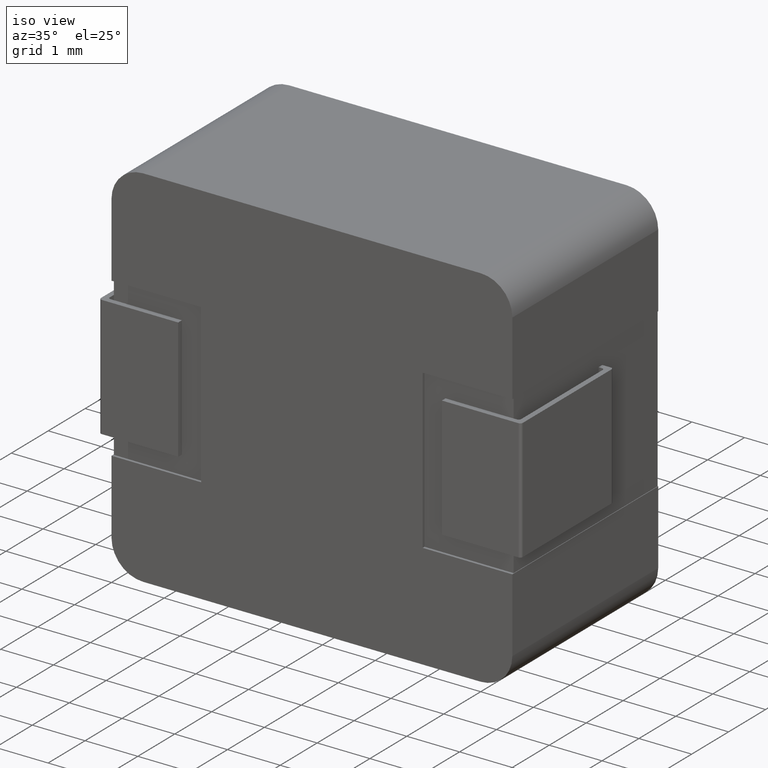
[diagram: clean part render]
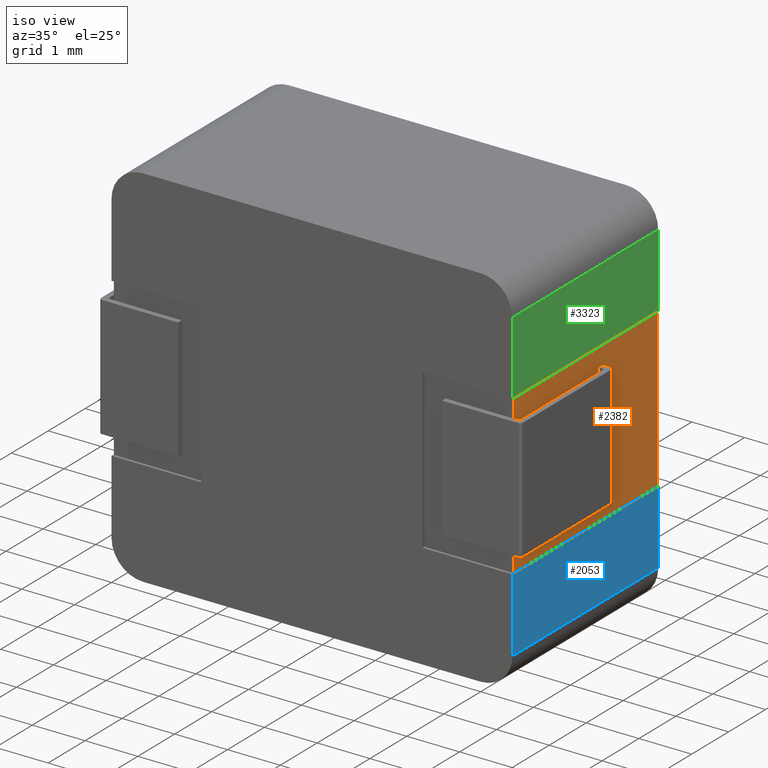
[diagram: same view with three faces highlighted in distinct colors, each labeled with its STEP entity id]
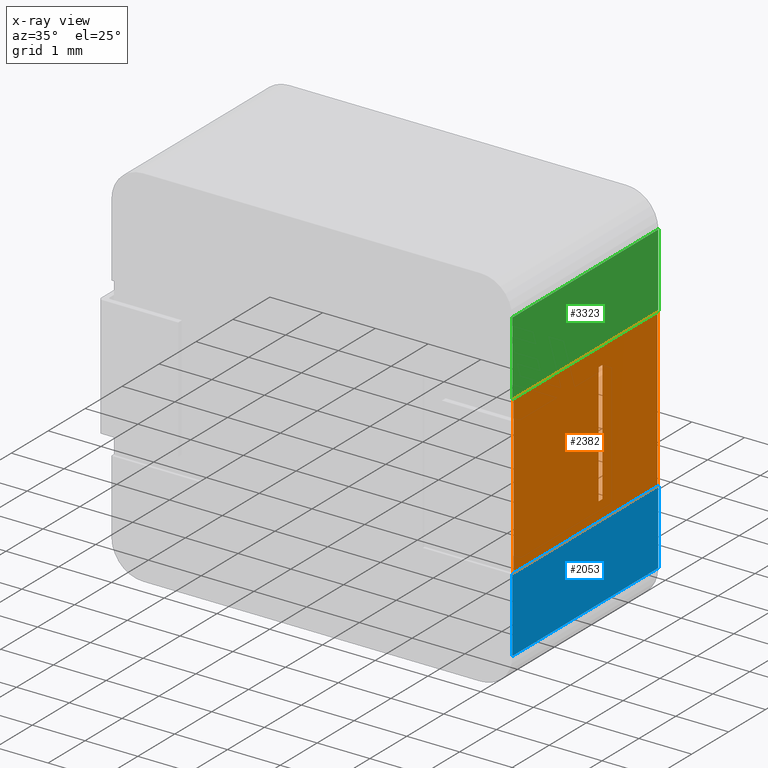
[diagram: x-ray of the same camera — body ghosted, the three highlighted faces saturated]
A machine part, iso view with three faces highlighted in distinct colors.
The next image is the same camera in x-ray (body ghosted, the three faces saturated) — at least one of them is partly hidden behind the body in this view.
Their STEP definitions:

[orange] entity #2382 — the highlighted planar face has unit normal (-1, 0, 0).
#55 = EDGE_LOOP ( 'NONE', ( #74, #1088, #1829, #2896 ) ) ;
#71 = EDGE_CURVE ( 'NONE', #734, #2223, #396, .T. ) ;
#74 = ORIENTED_EDGE ( 'NONE', *, *, #3552, .F. ) ;
#101 = ORIENTED_EDGE ( 'NONE', *, *, #2891, .F. ) ;
#130 = ORIENTED_EDGE ( 'NONE', *, *, #3068, .F. ) ;
#162 = LINE ( 'NONE', #1338, #2648 ) ;
#173 = VECTOR ( 'NONE', #1587, 1000.000000000000000 ) ;
#218 = DIRECTION ( 'NONE',  ( 0.0000000000000000000, 0.0000000000000000000, 1.000000000000000000 ) ) ;
#222 = DIRECTION ( 'NONE',  ( 0.0000000000000000000, 0.0000000000000000000, -1.000000000000000000 ) ) ;
#233 = DIRECTION ( 'NONE',  ( 0.0000000000000000000, -0.0000000000000000000, -1.000000000000000000 ) ) ;
#260 = CARTESIAN_POINT ( 'NONE',  ( 7.589999999999997200, 0.04999999999999999600, -2.350000000000000500 ) ) ;
#307 = VERTEX_POINT ( 'NONE', #3511 ) ;
#396 = LINE ( 'NONE', #1685, #2222 ) ;
#408 = CARTESIAN_POINT ( 'NONE',  ( 7.589999999999997200, 0.05000000000000000300, -2.000000000000000400 ) ) ;
#415 = VERTEX_POINT ( 'NONE', #599 ) ;
#574 = CARTESIAN_POINT ( 'NONE',  ( 7.589999999999997200, 0.05000000000000000300, -2.000000000000000000 ) ) ;
#599 = CARTESIAN_POINT ( 'NONE',  ( 7.589999999999997200, 3.950000000000000200, -5.000000000000000000 ) ) ;
#612 = LINE ( 'NONE', #3664, #4013 ) ;
#734 = VERTEX_POINT ( 'NONE', #260 ) ;
#739 = LINE ( 'NONE', #2567, #791 ) ;
#791 = VECTOR ( 'NONE', #934, 1000.000000000000000 ) ;
#838 = CARTESIAN_POINT ( 'NONE',  ( 7.589999999999997200, 3.950000000000000200, -5.000000000000000000 ) ) ;
#880 = CARTESIAN_POINT ( 'NONE',  ( 7.589999999999997200, 0.05000000000000000300, -5.000000000000000000 ) ) ;
#911 = DIRECTION ( 'NONE',  ( 0.0000000000000000000, 0.0000000000000000000, 1.000000000000000000 ) ) ;
#934 = DIRECTION ( 'NONE',  ( 0.0000000000000000000, 1.000000000000000000, 0.0000000000000000000 ) ) ;
#946 = CARTESIAN_POINT ( 'NONE',  ( 7.589999999999997200, 0.05000000000000000300, -5.000000000000000000 ) ) ;
#1057 = ORIENTED_EDGE ( 'NONE', *, *, #2801, .F. ) ;
#1088 = ORIENTED_EDGE ( 'NONE', *, *, #1160, .T. ) ;
#1114 = CARTESIAN_POINT ( 'NONE',  ( 7.589999999999997200, 0.05000000000000000300, -2.000000000000000000 ) ) ;
#1146 = FACE_BOUND ( 'NONE', #55, .T. ) ;
#1160 = EDGE_CURVE ( 'NONE', #2216, #2074, #612, .T. ) ;
#1299 = CARTESIAN_POINT ( 'NONE',  ( 7.589999999999997200, 2.350000000000000500, -4.650000000000000400 ) ) ;
#1304 = VECTOR ( 'NONE', #911, 1000.000000000000000 ) ;
#1338 = CARTESIAN_POINT ( 'NONE',  ( 7.589999999999997200, 2.350000000000000500, -4.650000000000000400 ) ) ;
#1421 = CARTESIAN_POINT ( 'NONE',  ( 7.589999999999997200, 2.449999999999999700, -4.650000000000000400 ) ) ;
#1550 = LINE ( 'NONE', #3381, #1842 ) ;
#1587 = DIRECTION ( 'NONE',  ( 0.0000000000000000000, -1.000000000000000000, -0.0000000000000000000 ) ) ;
#1685 = CARTESIAN_POINT ( 'NONE',  ( 7.589999999999997200, 0.05000000000000000300, -2.000000000000000000 ) ) ;
#1753 = EDGE_CURVE ( 'NONE', #2223, #307, #3262, .T. ) ;
#1823 = ORIENTED_EDGE ( 'NONE', *, *, #3945, .F. ) ;
#1829 = ORIENTED_EDGE ( 'NONE', *, *, #3045, .T. ) ;
#1842 = VECTOR ( 'NONE', #218, 1000.000000000000000 ) ;
#1935 = LINE ( 'NONE', #838, #3152 ) ;
#1976 = DIRECTION ( 'NONE',  ( 0.0000000000000000000, 0.0000000000000000000, 1.000000000000000000 ) ) ;
#2074 = VERTEX_POINT ( 'NONE', #2547 ) ;
#2093 = LINE ( 'NONE', #574, #1304 ) ;
#2216 = VERTEX_POINT ( 'NONE', #1299 ) ;
#2222 = VECTOR ( 'NONE', #3281, 1000.000000000000000 ) ;
#2223 = VERTEX_POINT ( 'NONE', #408 ) ;
#2382 = ADVANCED_FACE ( 'NONE', ( #4051, #1146 ), #3285, .F. ) ;
#2460 = VERTEX_POINT ( 'NONE', #3789 ) ;
#2500 = DIRECTION ( 'NONE',  ( 0.0000000000000000000, 0.0000000000000000000, 1.000000000000000000 ) ) ;
#2547 = CARTESIAN_POINT ( 'NONE',  ( 7.589999999999997200, 2.350000000000000500, -2.350000000000000500 ) ) ;
#2567 = CARTESIAN_POINT ( 'NONE',  ( 7.589999999999997200, 2.350000000000000500, -2.350000000000000500 ) ) ;
#2625 = CARTESIAN_POINT ( 'NONE',  ( 7.589999999999997200, 0.05000000000000000300, -4.650000000000000400 ) ) ;
#2648 = VECTOR ( 'NONE', #3265, 1000.000000000000000 ) ;
#2739 = VERTEX_POINT ( 'NONE', #1421 ) ;
#2766 = EDGE_CURVE ( 'NONE', #2739, #2460, #1550, .T. ) ;
#2801 = EDGE_CURVE ( 'NONE', #307, #415, #1935, .T. ) ;
#2891 = EDGE_CURVE ( 'NONE', #3966, #3126, #2093, .T. ) ;
#2896 = ORIENTED_EDGE ( 'NONE', *, *, #2766, .F. ) ;
#3045 = EDGE_CURVE ( 'NONE', #2074, #2460, #739, .T. ) ;
#3068 = EDGE_CURVE ( 'NONE', #415, #3966, #3563, .T. ) ;
#3126 = VERTEX_POINT ( 'NONE', #2625 ) ;
#3152 = VECTOR ( 'NONE', #233, 1000.000000000000000 ) ;
#3262 = LINE ( 'NONE', #1114, #3773 ) ;
#3265 = DIRECTION ( 'NONE',  ( 0.0000000000000000000, 1.000000000000000000, 0.0000000000000000000 ) ) ;
#3281 = DIRECTION ( 'NONE',  ( 0.0000000000000000000, 0.0000000000000000000, 1.000000000000000000 ) ) ;
#3285 = PLANE ( 'NONE',  #4110 ) ;
#3381 = CARTESIAN_POINT ( 'NONE',  ( 7.589999999999997200, 2.449999999999999700, -4.650000000000000400 ) ) ;
#3391 = DIRECTION ( 'NONE',  ( 0.0000000000000000000, 1.000000000000000000, 0.0000000000000000000 ) ) ;
#3403 = LINE ( 'NONE', #3454, #3598 ) ;
#3454 = CARTESIAN_POINT ( 'NONE',  ( 7.589999999999997200, 0.05000000000000000300, -2.000000000000000000 ) ) ;
#3495 = EDGE_LOOP ( 'NONE', ( #101, #130, #1057, #3505, #3577, #1823 ) ) ;
#3505 = ORIENTED_EDGE ( 'NONE', *, *, #1753, .F. ) ;
#3511 = CARTESIAN_POINT ( 'NONE',  ( 7.589999999999997200, 3.950000000000000200, -2.000000000000000000 ) ) ;
#3552 = EDGE_CURVE ( 'NONE', #2216, #2739, #162, .T. ) ;
#3563 = LINE ( 'NONE', #946, #173 ) ;
#3577 = ORIENTED_EDGE ( 'NONE', *, *, #71, .F. ) ;
#3598 = VECTOR ( 'NONE', #2500, 1000.000000000000000 ) ;
#3664 = CARTESIAN_POINT ( 'NONE',  ( 7.589999999999997200, 2.350000000000000500, -4.650000000000000400 ) ) ;
#3683 = CARTESIAN_POINT ( 'NONE',  ( 7.589999999999997200, 0.0000000000000000000, 0.0000000000000000000 ) ) ;
#3773 = VECTOR ( 'NONE', #3391, 1000.000000000000000 ) ;
#3789 = CARTESIAN_POINT ( 'NONE',  ( 7.589999999999997200, 2.449999999999999700, -2.350000000000000500 ) ) ;
#3945 = EDGE_CURVE ( 'NONE', #3126, #734, #3403, .T. ) ;
#3966 = VERTEX_POINT ( 'NONE', #880 ) ;
#4013 = VECTOR ( 'NONE', #1976, 1000.000000000000000 ) ;
#4047 = DIRECTION ( 'NONE',  ( -1.000000000000000000, 0.0000000000000000000, 0.0000000000000000000 ) ) ;
#4051 = FACE_OUTER_BOUND ( 'NONE', #3495, .T. ) ;
#4110 = AXIS2_PLACEMENT_3D ( 'NONE', #3683, #4047, #222 ) ;

[blue] entity #2053 — the highlighted planar face has unit normal (-1, 0, 0).
#46 = CARTESIAN_POINT ( 'NONE',  ( 7.599999999999999600, 3.950000000000000200, -6.400100000000001000 ) ) ;
#93 = DIRECTION ( 'NONE',  ( -0.0000000000000000000, -1.000000000000000000, -0.0000000000000000000 ) ) ;
#277 = FACE_OUTER_BOUND ( 'NONE', #2813, .T. ) ;
#296 = DIRECTION ( 'NONE',  ( 0.0000000000000000000, 0.0000000000000000000, 1.000000000000000000 ) ) ;
#397 = EDGE_CURVE ( 'NONE', #937, #2203, #662, .T. ) ;
#472 = EDGE_CURVE ( 'NONE', #2031, #2982, #1581, .T. ) ;
#610 = DIRECTION ( 'NONE',  ( -0.0000000000000000000, 1.000000000000000000, -0.0000000000000000000 ) ) ;
#662 = LINE ( 'NONE', #2871, #1681 ) ;
#698 = CARTESIAN_POINT ( 'NONE',  ( 7.599999999999996100, 0.05000000000000000300, -5.000000000000000000 ) ) ;
#937 = VERTEX_POINT ( 'NONE', #2531 ) ;
#982 = VECTOR ( 'NONE', #610, 1000.000000000000000 ) ;
#1234 = CARTESIAN_POINT ( 'NONE',  ( 7.599999999999999600, 0.0000000000000000000, 0.0000000000000000000 ) ) ;
#1464 = ORIENTED_EDGE ( 'NONE', *, *, #1545, .T. ) ;
#1545 = EDGE_CURVE ( 'NONE', #937, #2031, #3212, .T. ) ;
#1581 = LINE ( 'NONE', #1234, #3083 ) ;
#1596 = PLANE ( 'NONE',  #3819 ) ;
#1681 = VECTOR ( 'NONE', #2502, 1000.000000000000000 ) ;
#1717 = ORIENTED_EDGE ( 'NONE', *, *, #472, .T. ) ;
#1927 = LINE ( 'NONE', #2208, #982 ) ;
#2031 = VERTEX_POINT ( 'NONE', #2880 ) ;
#2053 = ADVANCED_FACE ( 'NONE', ( #277 ), #1596, .F. ) ;
#2203 = VERTEX_POINT ( 'NONE', #46 ) ;
#2208 = CARTESIAN_POINT ( 'NONE',  ( 7.599999999999999600, 3.950000000000000200, -6.400100000000001000 ) ) ;
#2260 = ORIENTED_EDGE ( 'NONE', *, *, #397, .F. ) ;
#2502 = DIRECTION ( 'NONE',  ( 0.0000000000000000000, 0.0000000000000000000, -1.000000000000000000 ) ) ;
#2531 = CARTESIAN_POINT ( 'NONE',  ( 7.599999999999996100, 3.950000000000000200, -5.000000000000000000 ) ) ;
#2761 = VECTOR ( 'NONE', #93, 1000.000000000000000 ) ;
#2813 = EDGE_LOOP ( 'NONE', ( #2260, #1464, #1717, #3707 ) ) ;
#2871 = CARTESIAN_POINT ( 'NONE',  ( 7.599999999999999600, 3.950000000000000200, 0.0000000000000000000 ) ) ;
#2880 = CARTESIAN_POINT ( 'NONE',  ( 7.599999999999996100, 0.0000000000000000000, -5.000000000000000000 ) ) ;
#2982 = VERTEX_POINT ( 'NONE', #3469 ) ;
#3083 = VECTOR ( 'NONE', #3484, 1000.000000000000000 ) ;
#3212 = LINE ( 'NONE', #698, #2761 ) ;
#3469 = CARTESIAN_POINT ( 'NONE',  ( 7.599999999999999600, 0.0000000000000000000, -6.400100000000001000 ) ) ;
#3484 = DIRECTION ( 'NONE',  ( 0.0000000000000000000, 0.0000000000000000000, -1.000000000000000000 ) ) ;
#3707 = ORIENTED_EDGE ( 'NONE', *, *, #4002, .T. ) ;
#3810 = DIRECTION ( 'NONE',  ( -1.000000000000000000, 0.0000000000000000000, 0.0000000000000000000 ) ) ;
#3819 = AXIS2_PLACEMENT_3D ( 'NONE', #3821, #3810, #296 ) ;
#3821 = CARTESIAN_POINT ( 'NONE',  ( 7.599999999999999600, 3.950000000000000200, 0.0000000000000000000 ) ) ;
#4002 = EDGE_CURVE ( 'NONE', #2982, #2203, #1927, .T. ) ;

[green] entity #3323 — the highlighted planar face has unit normal (-1, 0, 0).
#181 = LINE ( 'NONE', #731, #3477 ) ;
#241 = VERTEX_POINT ( 'NONE', #244 ) ;
#244 = CARTESIAN_POINT ( 'NONE',  ( 7.599999999999999600, 0.0000000000000000000, -2.000000000000000000 ) ) ;
#250 = CARTESIAN_POINT ( 'NONE',  ( 7.599999999999996100, 0.05000000000000000300, -2.000000000000000400 ) ) ;
#329 = CARTESIAN_POINT ( 'NONE',  ( 7.599999999999999600, 3.950000000000000200, -0.5998999999999999900 ) ) ;
#731 = CARTESIAN_POINT ( 'NONE',  ( 7.599999999999999600, 3.950000000000000200, 0.0000000000000000000 ) ) ;
#779 = CARTESIAN_POINT ( 'NONE',  ( 7.599999999999999600, 3.950000000000000200, 0.0000000000000000000 ) ) ;
#782 = EDGE_CURVE ( 'NONE', #3169, #241, #2115, .T. ) ;
#1079 = DIRECTION ( 'NONE',  ( 0.0000000000000000000, 0.0000000000000000000, -1.000000000000000000 ) ) ;
#1214 = ORIENTED_EDGE ( 'NONE', *, *, #1644, .F. ) ;
#1221 = CARTESIAN_POINT ( 'NONE',  ( 7.599999999999999600, 0.0000000000000000000, 0.0000000000000000000 ) ) ;
#1258 = FACE_OUTER_BOUND ( 'NONE', #2202, .T. ) ;
#1301 = VECTOR ( 'NONE', #3845, 1000.000000000000000 ) ;
#1323 = EDGE_CURVE ( 'NONE', #2937, #241, #1620, .T. ) ;
#1404 = PLANE ( 'NONE',  #3872 ) ;
#1457 = CARTESIAN_POINT ( 'NONE',  ( 7.599999999999999600, 3.950000000000000200, -0.5998999999999999900 ) ) ;
#1515 = VECTOR ( 'NONE', #2185, 1000.000000000000000 ) ;
#1557 = CARTESIAN_POINT ( 'NONE',  ( 7.599999999999999600, 0.0000000000000000000, -0.5998999999999999900 ) ) ;
#1620 = LINE ( 'NONE', #1221, #1515 ) ;
#1644 = EDGE_CURVE ( 'NONE', #3734, #3169, #181, .T. ) ;
#1872 = ORIENTED_EDGE ( 'NONE', *, *, #782, .F. ) ;
#2115 = LINE ( 'NONE', #250, #3690 ) ;
#2185 = DIRECTION ( 'NONE',  ( 0.0000000000000000000, 0.0000000000000000000, -1.000000000000000000 ) ) ;
#2202 = EDGE_LOOP ( 'NONE', ( #1872, #1214, #2734, #2420 ) ) ;
#2420 = ORIENTED_EDGE ( 'NONE', *, *, #1323, .T. ) ;
#2503 = EDGE_CURVE ( 'NONE', #3734, #2937, #2594, .T. ) ;
#2594 = LINE ( 'NONE', #329, #1301 ) ;
#2734 = ORIENTED_EDGE ( 'NONE', *, *, #2503, .T. ) ;
#2791 = DIRECTION ( 'NONE',  ( -0.0000000000000000000, -1.000000000000000000, -0.0000000000000000000 ) ) ;
#2937 = VERTEX_POINT ( 'NONE', #1557 ) ;
#3169 = VERTEX_POINT ( 'NONE', #3587 ) ;
#3323 = ADVANCED_FACE ( 'NONE', ( #1258 ), #1404, .F. ) ;
#3477 = VECTOR ( 'NONE', #1079, 1000.000000000000000 ) ;
#3587 = CARTESIAN_POINT ( 'NONE',  ( 7.599999999999996100, 3.950000000000000200, -2.000000000000000000 ) ) ;
#3690 = VECTOR ( 'NONE', #2791, 1000.000000000000000 ) ;
#3706 = DIRECTION ( 'NONE',  ( -1.000000000000000000, 0.0000000000000000000, 0.0000000000000000000 ) ) ;
#3734 = VERTEX_POINT ( 'NONE', #1457 ) ;
#3845 = DIRECTION ( 'NONE',  ( 0.0000000000000000000, -1.000000000000000000, 0.0000000000000000000 ) ) ;
#3872 = AXIS2_PLACEMENT_3D ( 'NONE', #779, #3706, #3981 ) ;
#3981 = DIRECTION ( 'NONE',  ( 0.0000000000000000000, 0.0000000000000000000, 1.000000000000000000 ) ) ;